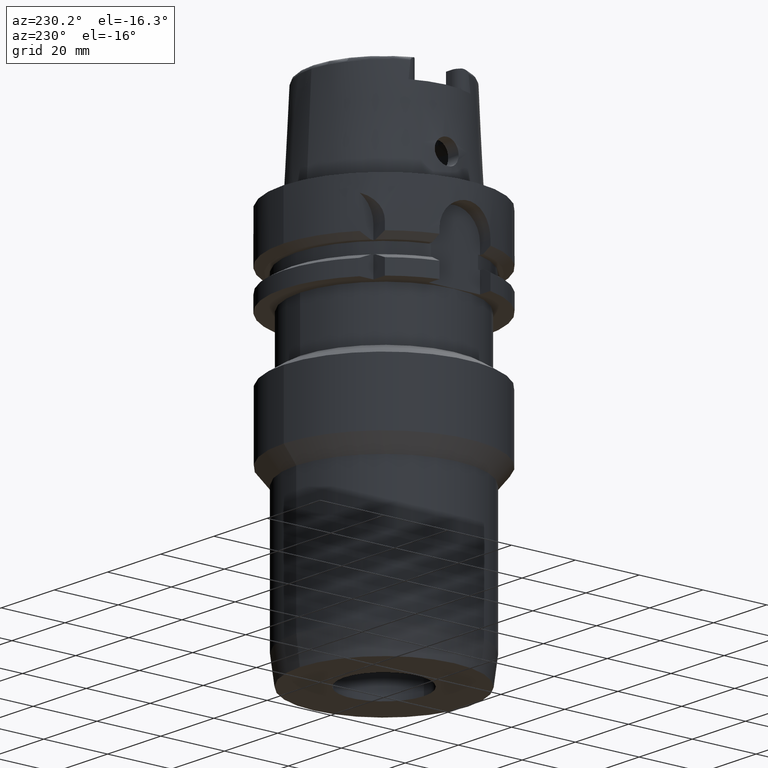
[diagram: clean part render]
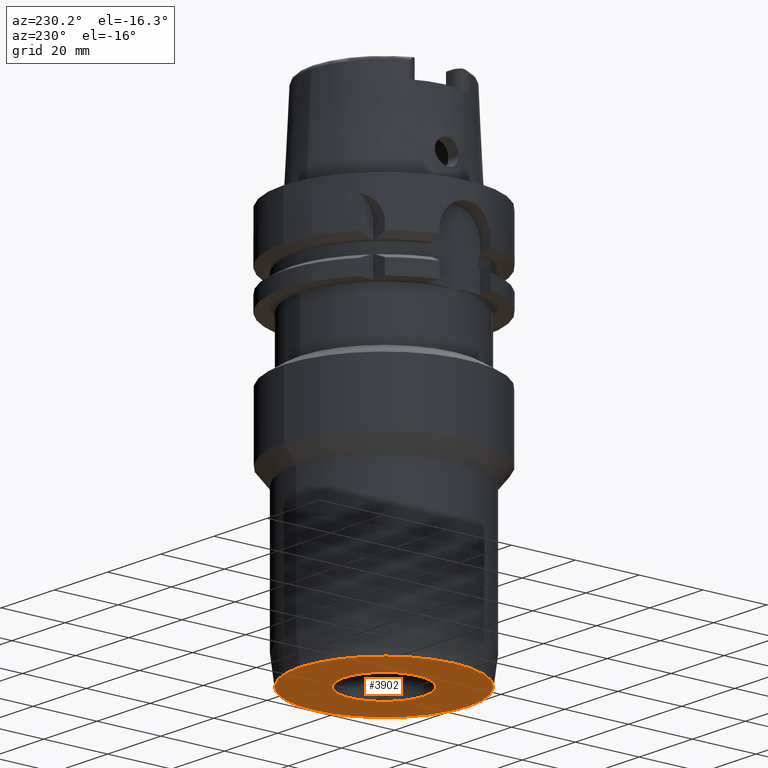
[diagram: same view with one face highlighted and labeled with its STEP entity id]
A machine part, auxiliary view. The second image highlights one B-rep face of the part: STEP entity #3902.
In plain terms, the highlighted planar face has unit normal (0, 0, -1).
Its self-contained STEP definition (entity closure, byte-faithful):
#1792=CARTESIAN_POINT('',(0.E0,0.E0,-1.2E2));
#1793=DIRECTION('',(0.E0,0.E0,1.E0));
#1794=DIRECTION('',(0.E0,-1.E0,0.E0));
#1795=AXIS2_PLACEMENT_3D('',#1792,#1793,#1794);
#1800=CARTESIAN_POINT('',(0.E0,0.E0,-1.2E2));
#1801=DIRECTION('',(0.E0,0.E0,1.E0));
#1802=DIRECTION('',(0.E0,1.E0,0.E0));
#1803=AXIS2_PLACEMENT_3D('',#1800,#1801,#1802);
#1808=CARTESIAN_POINT('',(0.E0,1.709606931610E-14,-1.2E2));
#1809=DIRECTION('',(0.E0,0.E0,-1.E0));
#1810=DIRECTION('',(0.E0,-1.E0,0.E0));
#1811=AXIS2_PLACEMENT_3D('',#1808,#1809,#1810);
#1816=CARTESIAN_POINT('',(0.E0,1.709606931610E-14,-1.2E2));
#1817=DIRECTION('',(0.E0,0.E0,-1.E0));
#1818=DIRECTION('',(0.E0,1.E0,0.E0));
#1819=AXIS2_PLACEMENT_3D('',#1816,#1817,#1818);
#2503=CARTESIAN_POINT('',(0.E0,2.64085E1,-1.2E2));
#2504=VERTEX_POINT('',#2503);
#2505=CARTESIAN_POINT('',(0.E0,-2.64085E1,-1.2E2));
#2506=VERTEX_POINT('',#2505);
#2507=CARTESIAN_POINT('',(0.E0,-1.25E1,-1.2E2));
#2508=CARTESIAN_POINT('',(0.E0,1.25E1,-1.2E2));
#2509=VERTEX_POINT('',#2507);
#2510=VERTEX_POINT('',#2508);
#3887=CARTESIAN_POINT('',(0.E0,0.E0,-1.2E2));
#3888=DIRECTION('',(0.E0,0.E0,-1.E0));
#3889=DIRECTION('',(0.E0,-1.E0,0.E0));
#3890=AXIS2_PLACEMENT_3D('',#3887,#3888,#3889);
#3891=PLANE('',#3890);
#3892=ORIENTED_EDGE('',*,*,#3866,.T.);
#3893=ORIENTED_EDGE('',*,*,#3882,.T.);
#3894=EDGE_LOOP('',(#3892,#3893));
#3895=FACE_OUTER_BOUND('',#3894,.F.);
#3897=ORIENTED_EDGE('',*,*,#3896,.T.);
#3899=ORIENTED_EDGE('',*,*,#3898,.T.);
#3900=EDGE_LOOP('',(#3897,#3899));
#3901=FACE_BOUND('',#3900,.F.);
#1796=CIRCLE('',#1795,2.64085E1);
#1804=CIRCLE('',#1803,2.64085E1);
#1812=CIRCLE('',#1811,1.25E1);
#1820=CIRCLE('',#1819,1.25E1);
#3866=EDGE_CURVE('',#2506,#2504,#1796,.T.);
#3882=EDGE_CURVE('',#2504,#2506,#1804,.T.);
#3896=EDGE_CURVE('',#2509,#2510,#1812,.T.);
#3898=EDGE_CURVE('',#2510,#2509,#1820,.T.);
#3902=ADVANCED_FACE('',(#3895,#3901),#3891,.T.);